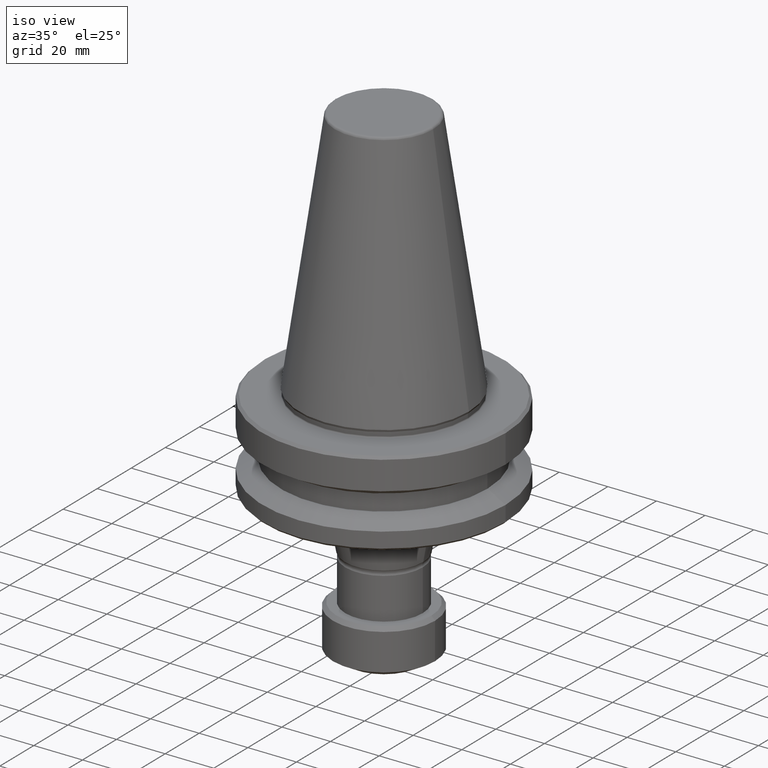
[diagram: clean part render]
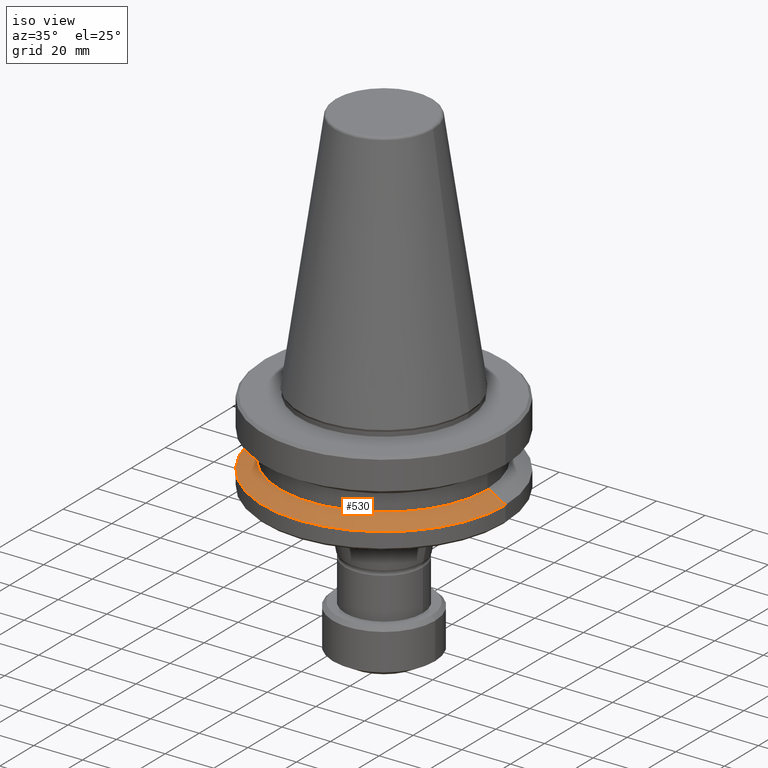
[diagram: same view with one face highlighted and labeled with its STEP entity id]
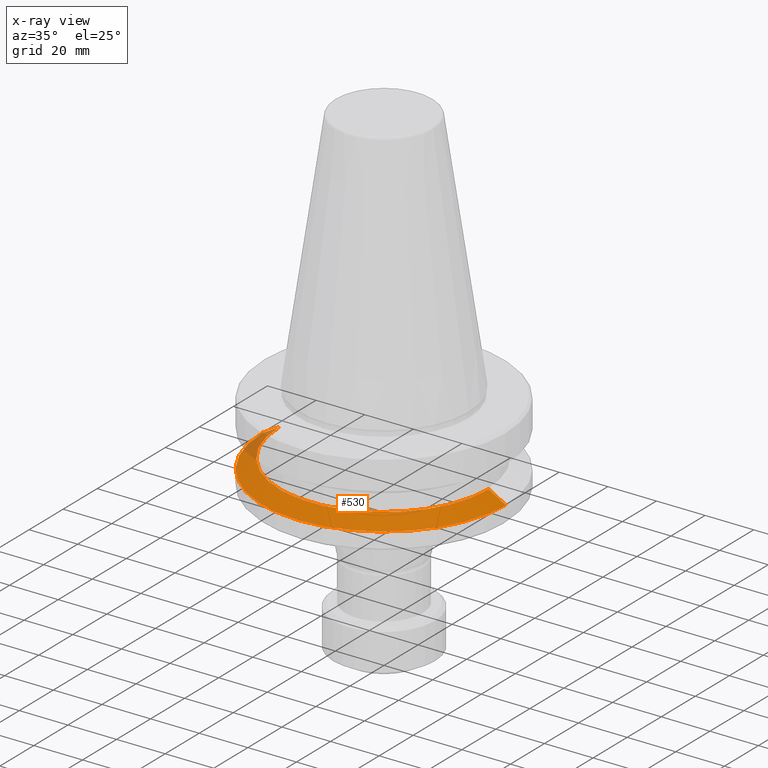
[diagram: x-ray of the same camera — body ghosted, the highlighted face saturated]
A machine part, iso view. The second image highlights one B-rep face of the part: STEP entity #530.
The next image is the same camera in x-ray: the body ghosted, the highlighted face saturated — about 5% of this face is hidden behind the body in this view.
In plain terms, the highlighted conical surface has half-angle 60 deg.
Its self-contained STEP definition (entity closure, byte-faithful):
#1 = EDGE_CURVE ( 'NONE', #678, #475, #240, .T. ) ;
#24 = CARTESIAN_POINT ( 'NONE',  ( -50.00000000000704100, 0.0000000000000000000, -30.69977999677519900 ) ) ;
#73 = DIRECTION ( 'NONE',  ( 0.8660254037844386000, 1.060575238724906800E-016, -0.5000000000000001100 ) ) ;
#98 = FACE_OUTER_BOUND ( 'NONE', #789, .T. ) ;
#195 = CARTESIAN_POINT ( 'NONE',  ( -43.07217782649664200, 0.0000000000000000000, -26.70000000000111100 ) ) ;
#240 = LINE ( 'NONE', #498, #1332 ) ;
#326 = EDGE_CURVE ( 'NONE', #799, #1045, #1114, .T. ) ;
#343 = CARTESIAN_POINT ( 'NONE',  ( -50.00000000000704100, 6.123233995737628300E-015, -30.69977999677519900 ) ) ;
#475 = VERTEX_POINT ( 'NONE', #802 ) ;
#498 = CARTESIAN_POINT ( 'NONE',  ( 50.00000000000704100, 6.123233995737628300E-015, -30.69977999677519900 ) ) ;
#530 = ADVANCED_FACE ( 'NONE', ( #98 ), #1131, .T. ) ;
#538 = DIRECTION ( 'NONE',  ( -0.0000000000000000000, -0.0000000000000000000, 1.000000000000000000 ) ) ;
#542 = CARTESIAN_POINT ( 'NONE',  ( 0.0000000000000000000, 0.0000000000000000000, -30.69977999677519900 ) ) ;
#543 = VECTOR ( 'NONE', #641, 1000.000000000000000 ) ;
#585 = ORIENTED_EDGE ( 'NONE', *, *, #959, .F. ) ;
#641 = DIRECTION ( 'NONE',  ( -0.8660254037844386000, 0.0000000000000000000, -0.5000000000000001100 ) ) ;
#652 = AXIS2_PLACEMENT_3D ( 'NONE', #1176, #538, #1286 ) ;
#658 = DIRECTION ( 'NONE',  ( 1.000000000000000000, 0.0000000000000000000, 0.0000000000000000000 ) ) ;
#678 = VERTEX_POINT ( 'NONE', #1024 ) ;
#748 = ORIENTED_EDGE ( 'NONE', *, *, #1, .F. ) ;
#789 = EDGE_LOOP ( 'NONE', ( #748, #585, #1270, #1160 ) ) ;
#799 = VERTEX_POINT ( 'NONE', #195 ) ;
#802 = CARTESIAN_POINT ( 'NONE',  ( 50.00000000000704100, 0.0000000000000000000, -30.69977999677519900 ) ) ;
#888 = CIRCLE ( 'NONE', #1112, 50.00000000000704100 ) ;
#959 = EDGE_CURVE ( 'NONE', #799, #678, #1201, .T. ) ;
#1007 = EDGE_CURVE ( 'NONE', #1045, #475, #888, .T. ) ;
#1024 = CARTESIAN_POINT ( 'NONE',  ( 43.07217782649664200, 5.699027233245049900E-015, -26.70000000000111100 ) ) ;
#1045 = VERTEX_POINT ( 'NONE', #343 ) ;
#1072 = AXIS2_PLACEMENT_3D ( 'NONE', #1092, #1302, #1191 ) ;
#1092 = CARTESIAN_POINT ( 'NONE',  ( 0.0000000000000000000, 0.0000000000000000000, -30.69977999677519900 ) ) ;
#1112 = AXIS2_PLACEMENT_3D ( 'NONE', #542, #1290, #658 ) ;
#1114 = LINE ( 'NONE', #24, #543 ) ;
#1131 = CONICAL_SURFACE ( 'NONE', #1072, 50.00000000000704100, 1.047197551196597600 ) ;
#1160 = ORIENTED_EDGE ( 'NONE', *, *, #1007, .T. ) ;
#1176 = CARTESIAN_POINT ( 'NONE',  ( 0.0000000000000000000, 0.0000000000000000000, -26.70000000000111100 ) ) ;
#1191 = DIRECTION ( 'NONE',  ( -1.000000000000000000, 0.0000000000000000000, 0.0000000000000000000 ) ) ;
#1201 = CIRCLE ( 'NONE', #652, 43.07217782649664200 ) ;
#1270 = ORIENTED_EDGE ( 'NONE', *, *, #326, .T. ) ;
#1286 = DIRECTION ( 'NONE',  ( 1.000000000000000000, 0.0000000000000000000, 0.0000000000000000000 ) ) ;
#1290 = DIRECTION ( 'NONE',  ( -0.0000000000000000000, -0.0000000000000000000, 1.000000000000000000 ) ) ;
#1302 = DIRECTION ( 'NONE',  ( 0.0000000000000000000, 0.0000000000000000000, -1.000000000000000000 ) ) ;
#1332 = VECTOR ( 'NONE', #73, 1000.000000000000000 ) ;